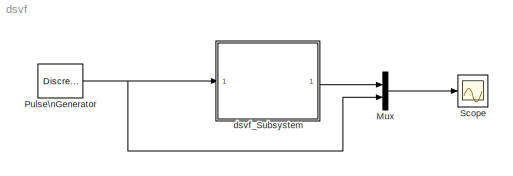
MODEL dsvf
KIND model
BLOCK [Mux] Mux
  DisplayOption = bar
  Inputs = 2
  Ports = [2, 1]
BLOCK [DiscretePulseGenerator] Pulse\nGenerator
  Period = 1/10
  Ports = [0, 1]
  PulseType = Time based
  PulseWidth = 50
BLOCK [Scope] Scope
  DataFormat = StructureWithTime
  Floating = off
  NumInputPorts = 1
  Ports = [1]
  SampleTime = 0
  TimeRange = 1
  YMax = 1.5
  YMin = -0.5
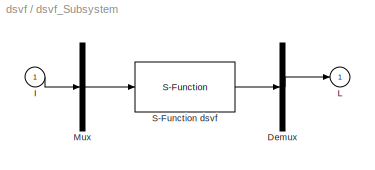
BLOCK [SubSystem] dsvf_Subsystem
  FunctionWithSeparateData = off
  MaskHideContents = off
  MinAlgLoopOccurrences = off
  Opaque = off
  Ports = [1, 1]
  PropExecContextOutsideSubsystem = off
  RTWSystemCode = Auto
  RequestExecContextInheritance = off
BLOCK [Demux] dsvf_Subsystem/Demux
  DisplayOption = bar
  Outputs = 1
  Ports = [1, 1]
BLOCK [Inport] dsvf_Subsystem/I
  IconDisplay = Port number
BLOCK [Outport] dsvf_Subsystem/L
  IconDisplay = Port number
BLOCK [Mux] dsvf_Subsystem/Mux
  DisplayOption = bar
  Inputs = 1
  Ports = [1, 1]
BLOCK [S-Function] dsvf_Subsystem/S-Function dsvf
  EnableBusSupport = off
  FunctionName = S_dsvf
  Parameters = sampleTime,TS,period
  Ports = [1, 1]
LINE Mux:1 -> Scope:1
NET Pulse\nGenerator:1 -> Mux:2, dsvf_Subsystem:1
LINE dsvf_Subsystem/Demux:1 -> dsvf_Subsystem/L:1
LINE dsvf_Subsystem/I:1 -> dsvf_Subsystem/Mux:1
LINE dsvf_Subsystem/Mux:1 -> dsvf_Subsystem/S-Function dsvf:1
LINE dsvf_Subsystem/S-Function dsvf:1 -> dsvf_Subsystem/Demux:1
LINE dsvf_Subsystem:1 -> Mux:1
note: NET lines group one-source signal fan-out (src -> all destinations, sorted); 1:1 wires keep LINE
